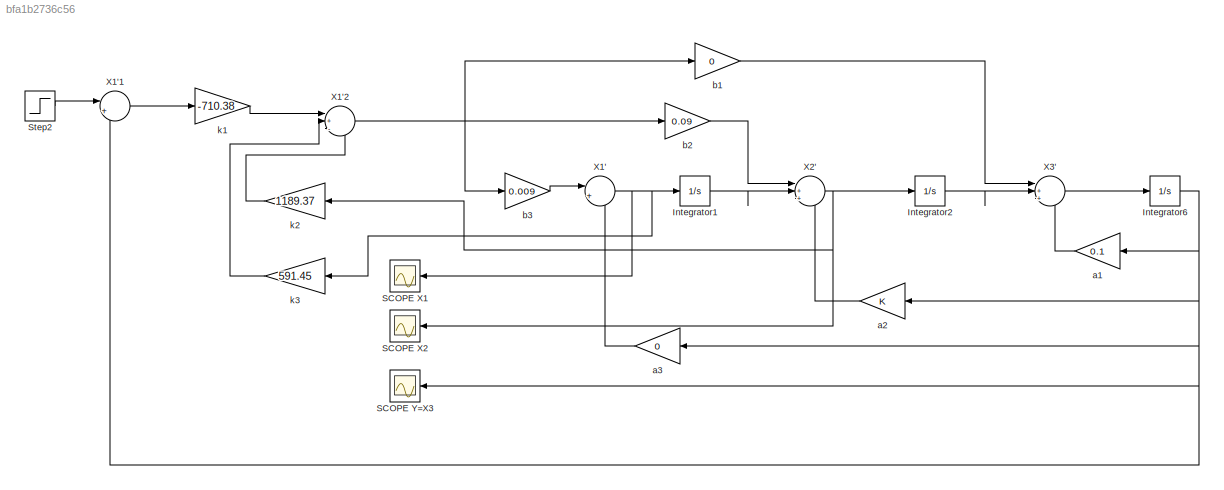
MODEL slx_bfa1b2736c56
KIND model
CONFIG AbsTol = auto
CONFIG EnableMultiTasking = off
CONFIG FixedStep = auto
CONFIG MaxStep = auto
CONFIG MinStep = auto
CONFIG RelTol = 1e-3
CONFIG SampleTimeConstraint = Unconstrained
CONFIG SolverName = VariableStepAuto
CONFIG StartTime = 0.0
CONFIG StopTime = 10.0
BLOCK [Integrator] Integrator1
  Ports = [1, 1]
BLOCK [Integrator] Integrator2
  Ports = [1, 1]
BLOCK [Integrator] Integrator6
  Ports = [1, 1]
BLOCK [Scope] SCOPE X1
  Floating = off
  NumInputPorts = 1
  Ports = [1]
  ScopeSpecificationString = Simulink.scopes.TimeScopeBlockCfg('CurrentConfiguration', extmgr.ConfigurationSet(extmgr.Configuration('Core','General UI',true),extmgr.Configuration('Core','Source UI',true),extmgr.Configuration('Sources','WiredSimulink',true,'DataLoggingVariableName','ScopeData2'),extmgr.Configuration('Visuals','Time Domain',true,'SerializedDisplays',{struct('MinYLimReal','-36.51407','MaxYLimReal','4.05712','YLa...<+1365ch>
BLOCK [Scope] SCOPE X2
  Floating = off
  NumInputPorts = 1
  Ports = [1]
  ScopeSpecificationString = Simulink.scopes.TimeScopeBlockCfg('CurrentConfiguration', extmgr.ConfigurationSet(extmgr.Configuration('Core','General UI',true),extmgr.Configuration('Core','Source UI',true),extmgr.Configuration('Sources','WiredSimulink',true,'DataLoggingVariableName','ScopeData1'),extmgr.Configuration('Visuals','Time Domain',true,'SerializedDisplays',{struct('MinYLimReal','-143.52682','MaxYLimReal','15.94742','Y...<+1373ch>
BLOCK [Scope] SCOPE Y=X3
  Floating = off
  NumInputPorts = 1
  Ports = [1]
  ScopeSpecificationString = Simulink.scopes.TimeScopeBlockCfg('CurrentConfiguration', extmgr.ConfigurationSet(extmgr.Configuration('Core','General UI',true),extmgr.Configuration('Core','Source UI',true),extmgr.Configuration('Sources','WiredSimulink',true,'DataLoggingVariableName','ScopeData3'),extmgr.Configuration('Visuals','Time Domain',true,'SerializedDisplays',{struct('MinYLimReal','-275.29024','MaxYLimReal','30.5878','YL...<+1378ch>
BLOCK [Step] Step2
  SampleTime = 0
BLOCK [Sum] X1'
  Inputs = |+-
  NameLocation = top
  Ports = [2, 1]
BLOCK [Sum] X1'1
  Inputs = |+-
  NameLocation = top
  Ports = [2, 1]
BLOCK [Sum] X1'2
  Inputs = |+--
  NameLocation = top
  Ports = [3, 1]
BLOCK [Sum] X2'
  Inputs = |++-
  NameLocation = top
  Ports = [3, 1]
BLOCK [Sum] X3'
  Inputs = |++-
  NameLocation = top
  Ports = [3, 1]
BLOCK [Gain] a1
  Gain = 0.1
BLOCK [Gain] a2
BLOCK [Gain] a3
  Gain = 0
BLOCK [Gain] b1
  Gain = 0
BLOCK [Gain] b2
  Gain = 0.09
BLOCK [Gain] b3
  Gain = 0.009
BLOCK [Gain] k1
  Gain = -710.38
BLOCK [Gain] k2
  Gain = 1189.37
BLOCK [Gain] k3
  Gain = 591.45
LINE Integrator1:1 -> X2':2
LINE Integrator2:1 -> X3':2
NET Integrator6:1 -> SCOPE Y=X3:1, X1'1:2, a1:1, a2:1, a3:1
LINE Step2:1 -> X1'1:1
LINE X1'1:1 -> k1:1
NET X1'2:1 -> b1:1, b2:1, b3:1
NET X1':1 -> Integrator1:1, SCOPE X1:1, k3:1
NET X2':1 -> Integrator2:1, SCOPE X2:1, k2:1
LINE X3':1 -> Integrator6:1
LINE a1:1 -> X3':3
LINE a2:1 -> X2':3
LINE a3:1 -> X1':2
LINE b1:1 -> X3':1
LINE b2:1 -> X2':1
LINE b3:1 -> X1':1
LINE k1:1 -> X1'2:1
LINE k2:1 -> X1'2:3
LINE k3:1 -> X1'2:2
note: NET lines group one-source signal fan-out (src -> all destinations, sorted); 1:1 wires keep LINE
